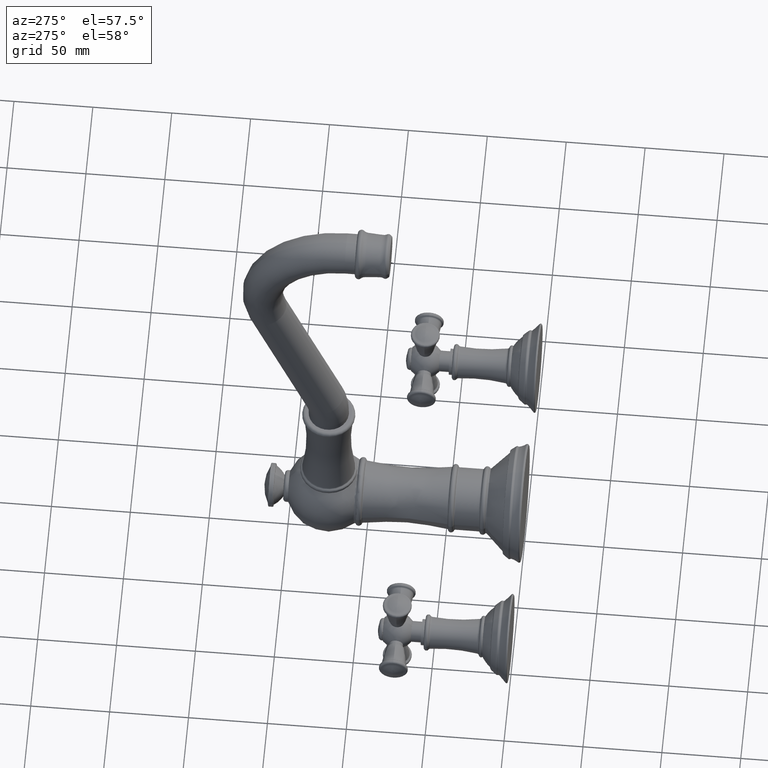
[diagram: clean part render]
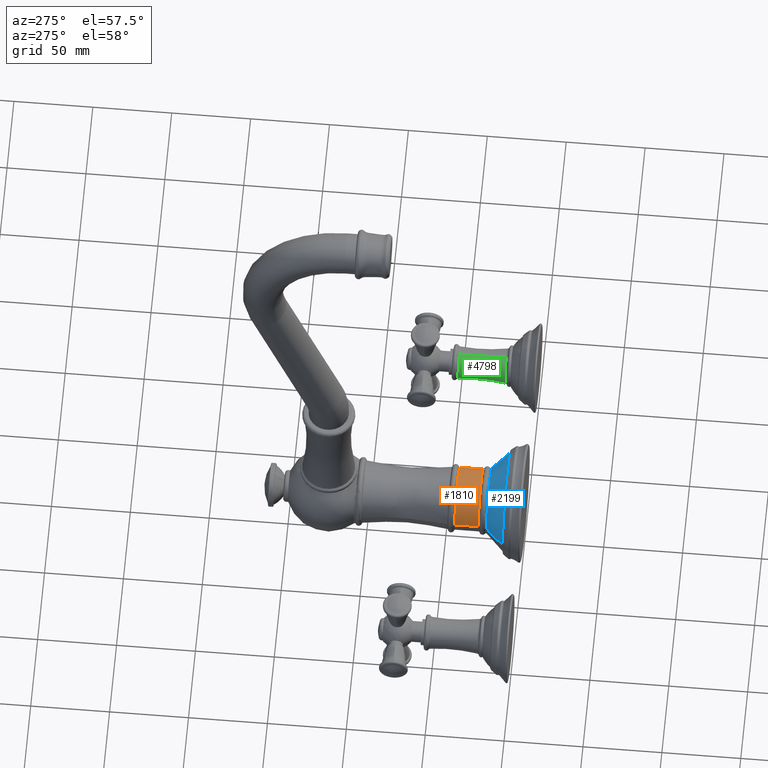
[diagram: same view with three faces highlighted in distinct colors, each labeled with its STEP entity id]
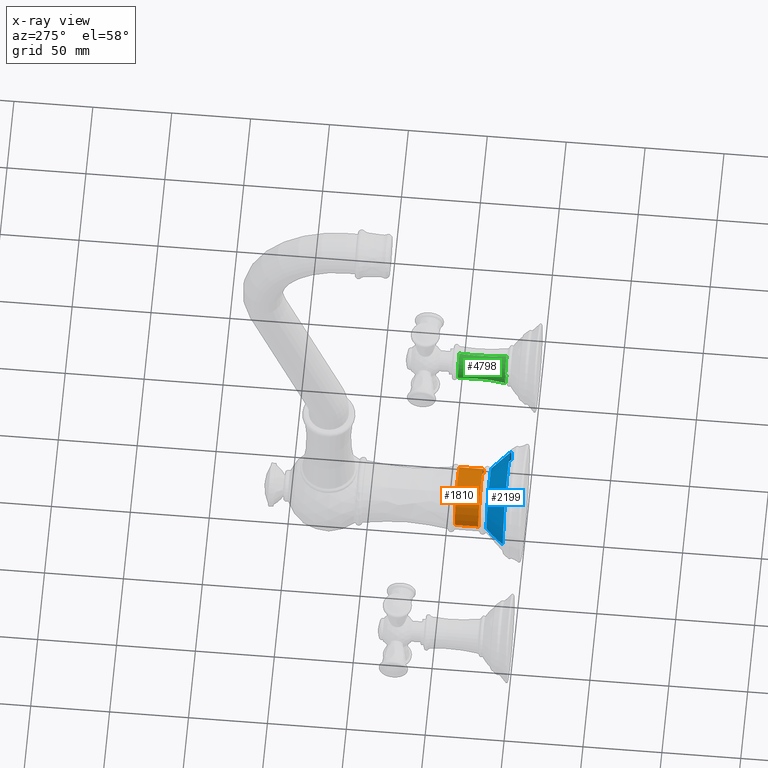
[diagram: x-ray of the same camera — body ghosted, the three highlighted faces saturated]
A machine part, auxiliary view with three faces highlighted in distinct colors.
The next image is the same camera in x-ray (body ghosted, the three faces saturated) — at least one of them is partly hidden behind the body in this view.
Their STEP definitions:

[orange] entity #1810 — the highlighted face is a SurfaceOfRevolution surface.
#380=CARTESIAN_POINT('',(0.E0,1.678674155118E0,0.E0));
#381=DIRECTION('',(0.E0,1.E0,0.E0));
#382=DIRECTION('',(-1.E0,0.E0,-2.065244968843E-12));
#383=AXIS2_PLACEMENT_3D('',#380,#381,#382);
#385=CARTESIAN_POINT('',(7.802000656128E-1,1.093830678704E0,
5.735360894041E-14));
#386=CARTESIAN_POINT('',(7.807458927694E-1,1.167407783758E0,
5.734930432453E-14));
#387=CARTESIAN_POINT('',(7.816473170196E-1,1.362440229393E0,
-5.461598178353E-14));
#388=CARTESIAN_POINT('',(7.811016186396E-1,1.557336813963E0,
2.543765569315E-14));
#389=CARTESIAN_POINT('',(7.802003461397E-1,1.678674155118E0,
2.542989504706E-14));
#391=CARTESIAN_POINT('',(0.E0,1.093830678704E0,0.E0));
#392=DIRECTION('',(0.E0,-1.E0,0.E0));
#393=DIRECTION('',(1.E0,0.E0,-1.855291270744E-12));
#394=AXIS2_PLACEMENT_3D('',#391,#392,#393);
#396=CARTESIAN_POINT('',(-7.802000656128E-1,1.093830678704E0,
-5.731969339755E-14));
#397=CARTESIAN_POINT('',(-7.807458927694E-1,1.167407783758E0,
-5.732433223617E-14));
#398=CARTESIAN_POINT('',(-7.816473170196E-1,1.362440229393E0,
5.452470329653E-14));
#399=CARTESIAN_POINT('',(-7.811016186396E-1,1.557336813963E0,
-2.566313683833E-14));
#400=CARTESIAN_POINT('',(-7.802003461397E-1,1.678674155118E0,
-2.567034561418E-14));
#1091=CARTESIAN_POINT('',(7.802003461397E-1,1.678674155118E0,
1.611455339554E-12));
#1092=CARTESIAN_POINT('',(-7.802003461397E-1,1.678674155118E0,
1.508975921268E-12));
#1093=VERTEX_POINT('',#1091);
#1094=VERTEX_POINT('',#1092);
#1099=VERTEX_POINT('',#396);
#1100=VERTEX_POINT('',#385);
#1791=CARTESIAN_POINT('',(-7.802000656128E-1,1.093830678704E0,0.E0));
#1792=CARTESIAN_POINT('',(-7.807458927694E-1,1.167407783758E0,0.E0));
#1793=CARTESIAN_POINT('',(-7.816473170196E-1,1.362440229393E0,0.E0));
#1794=CARTESIAN_POINT('',(-7.811016186396E-1,1.557336813963E0,0.E0));
#1795=CARTESIAN_POINT('',(-7.802003461397E-1,1.678674155118E0,0.E0));
#1797=CARTESIAN_POINT('',(0.E0,4.350829166329E0,0.E0));
#1798=DIRECTION('',(0.E0,-1.E0,0.E0));
#1799=AXIS1_PLACEMENT('',#1797,#1798);
#1800=SURFACE_OF_REVOLUTION('',#1796,#1799);
#1801=ORIENTED_EDGE('',*,*,#1781,.T.);
#1803=ORIENTED_EDGE('',*,*,#1802,.F.);
#1805=ORIENTED_EDGE('',*,*,#1804,.T.);
#1807=ORIENTED_EDGE('',*,*,#1806,.T.);
#1808=EDGE_LOOP('',(#1801,#1803,#1805,#1807));
#1809=FACE_OUTER_BOUND('',#1808,.F.);
#1810=ADVANCED_FACE('',(#1809),#1800,.F.);
#384=CIRCLE('',#383,7.802003461397E-1);
#390=B_SPLINE_CURVE_WITH_KNOTS('',3,(#385,#386,#387,#388,#389),.UNSPECIFIED.,
.F.,.F.,(4,1,4),(0.E0,3.771566262669E-1,1.E0),.UNSPECIFIED.);
#395=CIRCLE('',#394,7.802000656128E-1);
#401=B_SPLINE_CURVE_WITH_KNOTS('',3,(#396,#397,#398,#399,#400),.UNSPECIFIED.,
.F.,.F.,(4,1,4),(0.E0,3.771566262669E-1,1.E0),.UNSPECIFIED.);
#1781=EDGE_CURVE('',#1094,#1093,#384,.T.);
#1796=B_SPLINE_CURVE_WITH_KNOTS('',3,(#1791,#1792,#1793,#1794,#1795),
.UNSPECIFIED.,.F.,.F.,(4,1,4),(0.E0,3.771566262669E-1,1.E0),.UNSPECIFIED.);
#1802=EDGE_CURVE('',#1100,#1093,#390,.T.);
#1804=EDGE_CURVE('',#1100,#1099,#395,.T.);
#1806=EDGE_CURVE('',#1099,#1094,#401,.T.);

[blue] entity #2199 — the highlighted face is a freeform B-spline surface patch.
#487=CARTESIAN_POINT('',(0.E0,4.38E-1,0.E0));
#488=DIRECTION('',(0.E0,-1.E0,0.E0));
#489=DIRECTION('',(1.E0,0.E0,0.E0));
#490=AXIS2_PLACEMENT_3D('',#487,#488,#489);
#630=CARTESIAN_POINT('',(7.155430943604E-1,-1.024579013691E0,0.E0));
#631=DIRECTION('',(0.E0,0.E0,-1.E0));
#632=DIRECTION('',(-8.022627961716E-1,5.969710259962E-1,0.E0));
#633=AXIS2_PLACEMENT_3D('',#630,#631,#632);
#635=CARTESIAN_POINT('',(0.E0,8.823367400044E-1,0.E0));
#636=DIRECTION('',(0.E0,-1.E0,0.E0));
#637=DIRECTION('',(1.E0,0.E0,0.E0));
#638=AXIS2_PLACEMENT_3D('',#635,#636,#637);
#640=CARTESIAN_POINT('',(-7.155430943604E-1,-1.024579013691E0,0.E0));
#641=DIRECTION('',(0.E0,0.E0,1.E0));
#642=DIRECTION('',(8.022627961716E-1,5.969710259962E-1,0.E0));
#643=AXIS2_PLACEMENT_3D('',#640,#641,#642);
#1129=CARTESIAN_POINT('',(8.226936586494E-1,8.823367400044E-1,0.E0));
#1130=CARTESIAN_POINT('',(-8.226936586494E-1,8.823367400044E-1,0.E0));
#1131=VERTEX_POINT('',#1129);
#1132=VERTEX_POINT('',#1130);
#1137=CARTESIAN_POINT('',(-1.250000756260E0,4.38E-1,0.E0));
#1138=CARTESIAN_POINT('',(1.250000756260E0,4.38E-1,0.E0));
#1139=VERTEX_POINT('',#1137);
#1140=VERTEX_POINT('',#1138);
#2176=CARTESIAN_POINT('',(8.226936586494E-1,8.823367400044E-1,0.E0));
#2177=CARTESIAN_POINT('',(9.834831544914E-1,7.526339403275E-1,0.E0));
#2178=CARTESIAN_POINT('',(1.126677352075E0,6.037329665374E-1,0.E0));
#2179=CARTESIAN_POINT('',(1.250000756260E0,4.38E-1,0.E0));
#2180=CARTESIAN_POINT('',(8.226936586494E-1,8.823367400044E-1,
1.645387317299E0));
#2181=CARTESIAN_POINT('',(9.834831544914E-1,7.526339403275E-1,
1.966966308983E0));
#2182=CARTESIAN_POINT('',(1.126677352075E0,6.037329665374E-1,2.253354704149E0));
#2183=CARTESIAN_POINT('',(1.250000756260E0,4.38E-1,2.500001512520E0));
#2184=CARTESIAN_POINT('',(-8.226936586494E-1,8.823367400044E-1,
1.645387317299E0));
#2185=CARTESIAN_POINT('',(-9.834831544914E-1,7.526339403275E-1,
1.966966308983E0));
#2186=CARTESIAN_POINT('',(-1.126677352075E0,6.037329665374E-1,
2.253354704149E0));
#2187=CARTESIAN_POINT('',(-1.250000756260E0,4.38E-1,2.500001512520E0));
#2188=CARTESIAN_POINT('',(-8.226936586494E-1,8.823367400044E-1,0.E0));
#2189=CARTESIAN_POINT('',(-9.834831544914E-1,7.526339403275E-1,0.E0));
#2190=CARTESIAN_POINT('',(-1.126677352075E0,6.037329665374E-1,0.E0));
#2191=CARTESIAN_POINT('',(-1.250000756260E0,4.38E-1,0.E0));
#2192=(BOUNDED_SURFACE()B_SPLINE_SURFACE(3,3,((#2176,#2177,#2178,#2179),(#2180,
#2181,#2182,#2183),(#2184,#2185,#2186,#2187),(#2188,#2189,#2190,#2191)),
.UNSPECIFIED.,.F.,.F.,.F.)B_SPLINE_SURFACE_WITH_KNOTS((4,4),(4,4),(0.E0,1.E0),(
0.E0,1.E0),.UNSPECIFIED.)GEOMETRIC_REPRESENTATION_ITEM()RATIONAL_B_SPLINE_SURFACE(((2.007977177819E0,1.997340940727E0,1.997340940727E0,2.007977177819E0),(
6.693257259398E-1,6.657803135756E-1,6.657803135756E-1,6.693257259398E-1),(
6.693257259398E-1,6.657803135756E-1,6.657803135756E-1,6.693257259398E-1),(
2.007977177819E0,1.997340940727E0,1.997340940727E0,2.007977177819E0)))REPRESENTATION_ITEM('')SURFACE());
#2193=ORIENTED_EDGE('',*,*,#1965,.T.);
#2194=ORIENTED_EDGE('',*,*,#1948,.T.);
#2195=ORIENTED_EDGE('',*,*,#1893,.F.);
#2196=ORIENTED_EDGE('',*,*,#1945,.F.);
#2197=EDGE_LOOP('',(#2193,#2194,#2195,#2196));
#2198=FACE_OUTER_BOUND('',#2197,.F.);
#2199=ADVANCED_FACE('',(#2198),#2192,.T.);
#491=CIRCLE('',#490,1.250000756260E0);
#634=CIRCLE('',#633,2.45E0);
#639=CIRCLE('',#638,8.226936586494E-1);
#644=CIRCLE('',#643,2.45E0);
#1893=EDGE_CURVE('',#1131,#1132,#639,.T.);
#1945=EDGE_CURVE('',#1140,#1131,#644,.T.);
#1948=EDGE_CURVE('',#1139,#1132,#634,.T.);
#1965=EDGE_CURVE('',#1140,#1139,#491,.T.);

[green] entity #4798 — the highlighted toroidal blend (fillet) surface has major radius 122.734 mm and minor (blend) radius 113.259 mm.
#3093=CARTESIAN_POINT('',(4.E0,8.088308192436E-1,0.E0));
#3094=DIRECTION('',(0.E0,-1.E0,0.E0));
#3095=DIRECTION('',(0.E0,0.E0,1.E0));
#3096=AXIS2_PLACEMENT_3D('',#3093,#3094,#3095);
#3098=CARTESIAN_POINT('',(4.E0,1.526599832445E0,-4.832061425116E0));
#3099=DIRECTION('',(-1.E0,0.E0,0.E0));
#3100=DIRECTION('',(0.E0,-1.609708484418E-1,9.869591612382E-1));
#3101=AXIS2_PLACEMENT_3D('',#3098,#3099,#3100);
#3103=CARTESIAN_POINT('',(4.E0,1.981033478954E0,0.E0));
#3104=DIRECTION('',(0.E0,1.E0,0.E0));
#3105=DIRECTION('',(0.E0,0.E0,-1.E0));
#3106=AXIS2_PLACEMENT_3D('',#3103,#3104,#3105);
#3108=CARTESIAN_POINT('',(4.E0,1.526599832445E0,4.832061425116E0));
#3109=DIRECTION('',(1.E0,0.E0,0.E0));
#3110=DIRECTION('',(0.E0,-1.609708484418E-1,-9.869591612382E-1));
#3111=AXIS2_PLACEMENT_3D('',#3108,#3109,#3110);
#4177=CARTESIAN_POINT('',(4.E0,8.088308192436E-1,4.312105251546E-1));
#4178=CARTESIAN_POINT('',(4.E0,8.088308192436E-1,-4.312105251546E-1));
#4179=VERTEX_POINT('',#4177);
#4180=VERTEX_POINT('',#4178);
#4185=CARTESIAN_POINT('',(4.E0,1.981033478954E0,-3.962783983072E-1));
#4186=VERTEX_POINT('',#4185);
#4187=CARTESIAN_POINT('',(4.E0,1.981033478954E0,3.962783983072E-1));
#4188=VERTEX_POINT('',#4187);
#4784=CARTESIAN_POINT('',(4.E0,1.526599832445E0,0.E0));
#4785=DIRECTION('',(0.E0,-1.E0,0.E0));
#4786=DIRECTION('',(0.E0,0.E0,1.E0));
#4787=AXIS2_PLACEMENT_3D('',#4784,#4785,#4786);
#4788=TOROIDAL_SURFACE('',#4787,4.832061425116E0,4.459E0);
#4790=ORIENTED_EDGE('',*,*,#4789,.T.);
#4792=ORIENTED_EDGE('',*,*,#4791,.T.);
#4793=ORIENTED_EDGE('',*,*,#4774,.T.);
#4795=ORIENTED_EDGE('',*,*,#4794,.F.);
#4796=EDGE_LOOP('',(#4790,#4792,#4793,#4795));
#4797=FACE_OUTER_BOUND('',#4796,.F.);
#4798=ADVANCED_FACE('',(#4797),#4788,.F.);
#3097=CIRCLE('',#3096,4.312105251546E-1);
#3102=CIRCLE('',#3101,4.459E0);
#3107=CIRCLE('',#3106,3.962783983072E-1);
#3112=CIRCLE('',#3111,4.459E0);
#4774=EDGE_CURVE('',#4186,#4188,#3107,.T.);
#4789=EDGE_CURVE('',#4179,#4180,#3097,.T.);
#4791=EDGE_CURVE('',#4180,#4186,#3102,.T.);
#4794=EDGE_CURVE('',#4179,#4188,#3112,.T.);